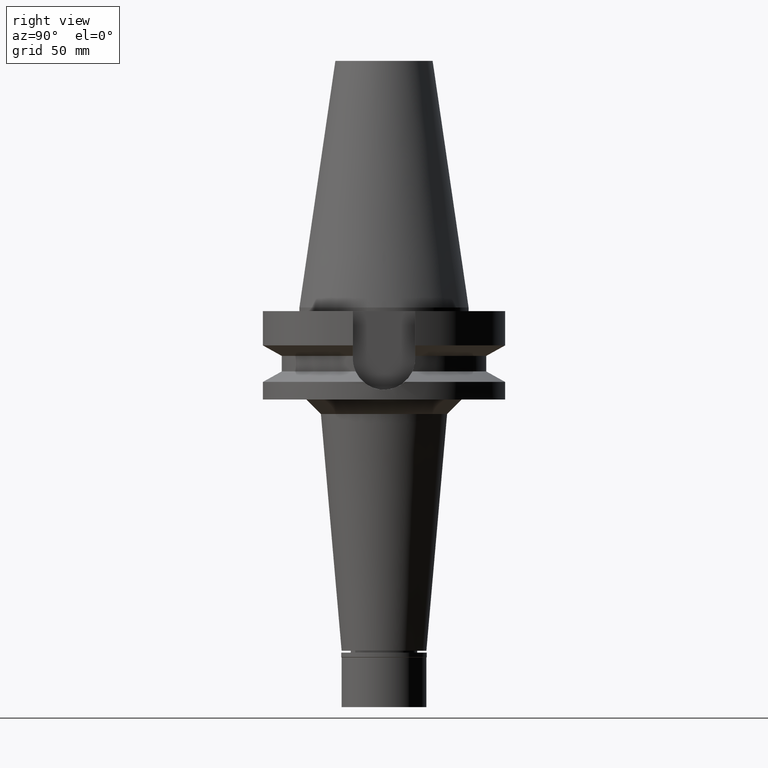
[diagram: clean part render]
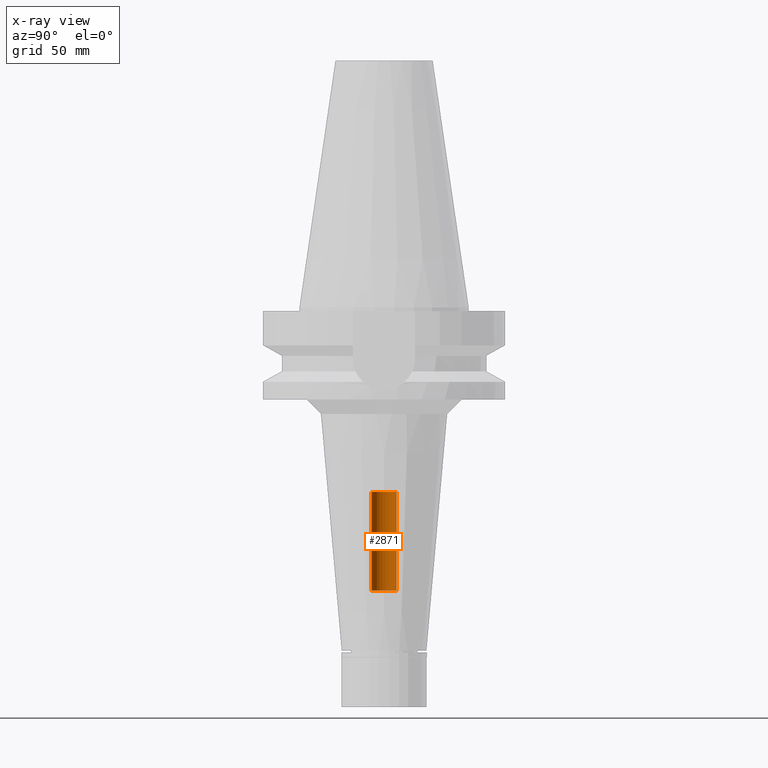
[diagram: x-ray — body ghosted, one internal face saturated and labeled with its STEP entity id]
A machine part, right view, then the same camera in x-ray: the body is ghosted and one INTERNAL B-rep face — a face not visible from any outside direction — is saturated and labeled: STEP entity #2871.
In plain terms, the highlighted cylindrical surface (edge-blend (fillet) strip) has radius 5.2 mm, axis along (0, 0, -1).
Its self-contained STEP definition (entity closure, byte-faithful):
#13 = DIRECTION ( 'NONE',  ( 0.0000000000000000000, 0.0000000000000000000, 1.000000000000000000 ) ) ;
#109 = EDGE_LOOP ( 'NONE', ( #456, #340, #2263, #2568 ) ) ;
#134 = EDGE_CURVE ( 'NONE', #1948, #2465, #1769, .T. ) ;
#228 = EDGE_CURVE ( 'NONE', #1948, #1627, #1274, .T. ) ;
#238 = CARTESIAN_POINT ( 'NONE',  ( 0.0000000000000000000, 2.630602556908000006E-14, 114.8050000000000068 ) ) ;
#256 = DIRECTION ( 'NONE',  ( 0.0000000000000000000, 1.000000000000000000, 0.0000000000000000000 ) ) ;
#277 = CARTESIAN_POINT ( 'NONE',  ( 0.0000000000000000000, 5.200000000000000178, -76.20000000000000284 ) ) ;
#278 = VERTEX_POINT ( 'NONE', #277 ) ;
#304 = CYLINDRICAL_SURFACE ( 'NONE', #2013, 5.200000000000000178 ) ;
#340 = ORIENTED_EDGE ( 'NONE', *, *, #228, .F. ) ;
#405 = LINE ( 'NONE', #1194, #1091 ) ;
#456 = ORIENTED_EDGE ( 'NONE', *, *, #1399, .T. ) ;
#461 = DIRECTION ( 'NONE',  ( 0.0000000000000000000, 0.0000000000000000000, -1.000000000000000000 ) ) ;
#567 = EDGE_CURVE ( 'NONE', #2465, #278, #405, .T. ) ;
#590 = AXIS2_PLACEMENT_3D ( 'NONE', #1976, #461, #2968 ) ;
#760 = DIRECTION ( 'NONE',  ( 0.0000000000000000000, -1.000000000000000000, 0.0000000000000000000 ) ) ;
#1047 = CARTESIAN_POINT ( 'NONE',  ( 0.0000000000000000000, -5.200000000000000178, -76.20000000000000284 ) ) ;
#1091 = VECTOR ( 'NONE', #1412, 1000.000000000000000 ) ;
#1194 = CARTESIAN_POINT ( 'NONE',  ( 0.0000000000000000000, 5.200000000000000178, -117.0000000000000000 ) ) ;
#1274 = LINE ( 'NONE', #2514, #2025 ) ;
#1399 = EDGE_CURVE ( 'NONE', #278, #1627, #2531, .T. ) ;
#1412 = DIRECTION ( 'NONE',  ( 0.0000000000000000000, 0.0000000000000000000, 1.000000000000000000 ) ) ;
#1430 = CARTESIAN_POINT ( 'NONE',  ( 0.0000000000000000000, 2.630602556908000006E-14, -76.20000000000000284 ) ) ;
#1627 = VERTEX_POINT ( 'NONE', #1047 ) ;
#1727 = DIRECTION ( 'NONE',  ( 0.0000000000000000000, 0.0000000000000000000, -1.000000000000000000 ) ) ;
#1769 = CIRCLE ( 'NONE', #590, 5.200000000000000178 ) ;
#1948 = VERTEX_POINT ( 'NONE', #1995 ) ;
#1976 = CARTESIAN_POINT ( 'NONE',  ( 0.0000000000000000000, 2.630602556908000006E-14, -117.0000000000000000 ) ) ;
#1995 = CARTESIAN_POINT ( 'NONE',  ( 0.0000000000000000000, -5.200000000000000178, -117.0000000000000000 ) ) ;
#2001 = FACE_OUTER_BOUND ( 'NONE', #109, .T. ) ;
#2013 = AXIS2_PLACEMENT_3D ( 'NONE', #238, #1727, #760 ) ;
#2025 = VECTOR ( 'NONE', #13, 1000.000000000000000 ) ;
#2174 = AXIS2_PLACEMENT_3D ( 'NONE', #1430, #2998, #256 ) ;
#2263 = ORIENTED_EDGE ( 'NONE', *, *, #134, .T. ) ;
#2465 = VERTEX_POINT ( 'NONE', #2484 ) ;
#2484 = CARTESIAN_POINT ( 'NONE',  ( 0.0000000000000000000, 5.200000000000000178, -117.0000000000000000 ) ) ;
#2514 = CARTESIAN_POINT ( 'NONE',  ( 0.0000000000000000000, -5.200000000000000178, -117.0000000000000000 ) ) ;
#2531 = CIRCLE ( 'NONE', #2174, 5.200000000000000178 ) ;
#2568 = ORIENTED_EDGE ( 'NONE', *, *, #567, .T. ) ;
#2871 = ADVANCED_FACE ( 'NONE', ( #2001 ), #304, .F. ) ;
#2968 = DIRECTION ( 'NONE',  ( 0.0000000000000000000, -1.000000000000000000, 0.0000000000000000000 ) ) ;
#2998 = DIRECTION ( 'NONE',  ( 0.0000000000000000000, 0.0000000000000000000, 1.000000000000000000 ) ) ;